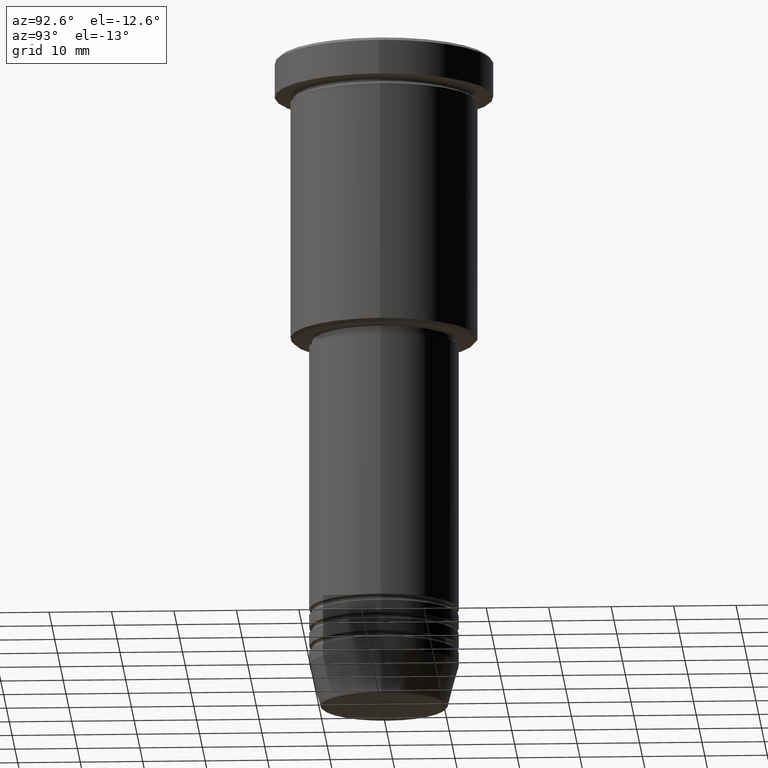
[diagram: clean part render]
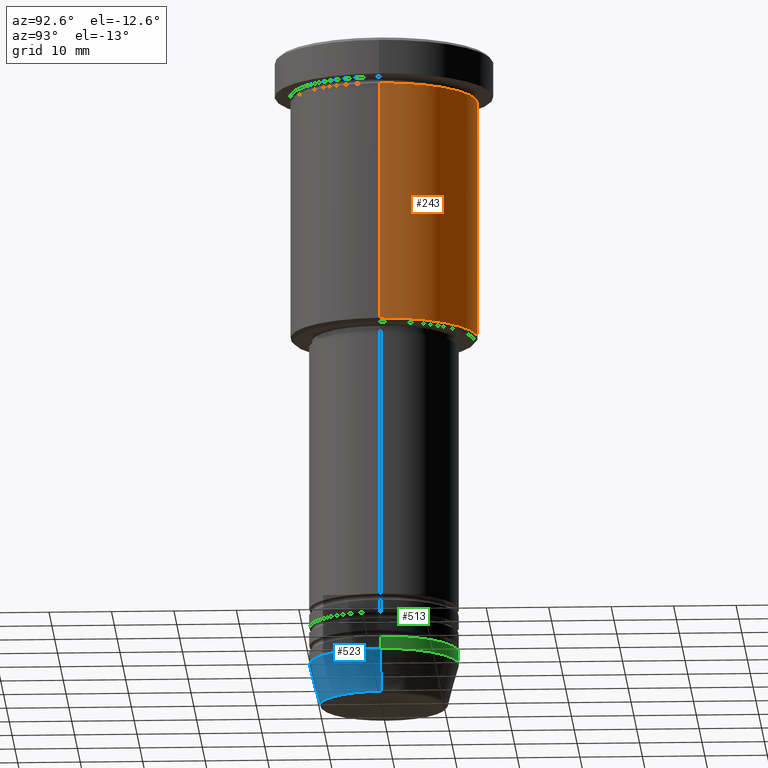
[diagram: same view with three faces highlighted in distinct colors, each labeled with its STEP entity id]
A machine part, auxiliary view with three faces highlighted in distinct colors.
Their STEP definitions:

[orange] entity #243 — the highlighted cylindrical surface (partial cylindrical patch) has radius 15 mm, axis along (-0, -0, 1).
#10 = CARTESIAN_POINT ( 'NONE',  ( 0.000000000000000000, 0.000000000000000000, -45.49999999999998579 ) ) ;
#18 = VERTEX_POINT ( 'NONE', #159 ) ;
#21 = VERTEX_POINT ( 'NONE', #241 ) ;
#55 = DIRECTION ( 'NONE',  ( -0.000000000000000000, -0.000000000000000000, 1.000000000000000000 ) ) ;
#136 = DIRECTION ( 'NONE',  ( -0.000000000000000000, -0.000000000000000000, 1.000000000000000000 ) ) ;
#138 = DIRECTION ( 'NONE',  ( -0.000000000000000000, -0.000000000000000000, 1.000000000000000000 ) ) ;
#148 = ORIENTED_EDGE ( 'NONE', *, *, #1132, .F. ) ;
#159 = CARTESIAN_POINT ( 'NONE',  ( 15.00000000000000000, 0.000000000000000000, -6.999999999999995559 ) ) ;
#170 = ORIENTED_EDGE ( 'NONE', *, *, #185, .T. ) ;
#185 = EDGE_CURVE ( 'NONE', #1053, #958, #361, .T. ) ;
#189 = VECTOR ( 'NONE', #136, 1000.000000000000000 ) ;
#205 = CARTESIAN_POINT ( 'NONE',  ( 0.000000000000000000, 0.000000000000000000, 0.000000000000000000 ) ) ;
#235 = AXIS2_PLACEMENT_3D ( 'NONE', #205, #759, #1122 ) ;
#241 = CARTESIAN_POINT ( 'NONE',  ( -15.00000000000000000, 1.836970198721029589E-15, -6.999999999999995559 ) ) ;
#243 = ADVANCED_FACE ( 'NONE', ( #667 ), #1023, .T. ) ;
#310 = ORIENTED_EDGE ( 'NONE', *, *, #486, .T. ) ;
#361 = CIRCLE ( 'NONE', #1037, 15.00000000000000000 ) ;
#367 = DIRECTION ( 'NONE',  ( -0.000000000000000000, -0.000000000000000000, 1.000000000000000000 ) ) ;
#391 = CARTESIAN_POINT ( 'NONE',  ( -15.00000000000000000, 1.836970198721029589E-15, -45.49999999999998579 ) ) ;
#406 = LINE ( 'NONE', #419, #1103 ) ;
#419 = CARTESIAN_POINT ( 'NONE',  ( 15.00000000000000000, 0.000000000000000000, 0.000000000000000000 ) ) ;
#486 = EDGE_CURVE ( 'NONE', #958, #21, #581, .T. ) ;
#559 = DIRECTION ( 'NONE',  ( -1.000000000000000000, 0.000000000000000000, 0.000000000000000000 ) ) ;
#581 = LINE ( 'NONE', #857, #189 ) ;
#588 = AXIS2_PLACEMENT_3D ( 'NONE', #1082, #55, #1157 ) ;
#667 = FACE_OUTER_BOUND ( 'NONE', #1027, .T. ) ;
#682 = CARTESIAN_POINT ( 'NONE',  ( 15.00000000000000000, 0.000000000000000000, -45.49999999999998579 ) ) ;
#759 = DIRECTION ( 'NONE',  ( -0.000000000000000000, -0.000000000000000000, 1.000000000000000000 ) ) ;
#857 = CARTESIAN_POINT ( 'NONE',  ( -15.00000000000000000, 1.836970198721029589E-15, 0.000000000000000000 ) ) ;
#958 = VERTEX_POINT ( 'NONE', #391 ) ;
#986 = ORIENTED_EDGE ( 'NONE', *, *, #1120, .F. ) ;
#1023 = CYLINDRICAL_SURFACE ( 'NONE', #235, 15.00000000000000000 ) ;
#1027 = EDGE_LOOP ( 'NONE', ( #170, #310, #986, #148 ) ) ;
#1037 = AXIS2_PLACEMENT_3D ( 'NONE', #10, #367, #559 ) ;
#1053 = VERTEX_POINT ( 'NONE', #682 ) ;
#1082 = CARTESIAN_POINT ( 'NONE',  ( 0.000000000000000000, 0.000000000000000000, -6.999999999999995559 ) ) ;
#1103 = VECTOR ( 'NONE', #138, 1000.000000000000000 ) ;
#1120 = EDGE_CURVE ( 'NONE', #18, #21, #1183, .T. ) ;
#1122 = DIRECTION ( 'NONE',  ( 1.000000000000000000, 0.000000000000000000, 0.000000000000000000 ) ) ;
#1132 = EDGE_CURVE ( 'NONE', #1053, #18, #406, .T. ) ;
#1157 = DIRECTION ( 'NONE',  ( 1.000000000000000000, 0.000000000000000000, 0.000000000000000000 ) ) ;
#1183 = CIRCLE ( 'NONE', #588, 15.00000000000000000 ) ;

[blue] entity #523 — the highlighted conical surface has half-angle 15 deg.
#26 = VERTEX_POINT ( 'NONE', #352 ) ;
#39 = DIRECTION ( 'NONE',  ( 1.000000000000000000, 0.000000000000000000, 0.000000000000000000 ) ) ;
#51 = ORIENTED_EDGE ( 'NONE', *, *, #220, .T. ) ;
#89 = AXIS2_PLACEMENT_3D ( 'NONE', #1049, #117, #39 ) ;
#117 = DIRECTION ( 'NONE',  ( -0.000000000000000000, -0.000000000000000000, 1.000000000000000000 ) ) ;
#211 = VERTEX_POINT ( 'NONE', #1095 ) ;
#220 = EDGE_CURVE ( 'NONE', #26, #293, #370, .T. ) ;
#236 = AXIS2_PLACEMENT_3D ( 'NONE', #321, #1070, #727 ) ;
#286 = CONICAL_SURFACE ( 'NONE', #236, 12.00000000000000000, 0.2617993877991500740 ) ;
#293 = VERTEX_POINT ( 'NONE', #948 ) ;
#296 = CARTESIAN_POINT ( 'NONE',  ( 0.000000000000000000, 0.000000000000000000, -105.6294095225512564 ) ) ;
#321 = CARTESIAN_POINT ( 'NONE',  ( 0.000000000000000000, 0.000000000000000000, -99.00000000000000000 ) ) ;
#352 = CARTESIAN_POINT ( 'NONE',  ( 10.22365507213719305, 0.000000000000000000, -105.6294095225512564 ) ) ;
#370 = LINE ( 'NONE', #657, #795 ) ;
#405 = EDGE_CURVE ( 'NONE', #211, #420, #409, .T. ) ;
#409 = LINE ( 'NONE', #784, #507 ) ;
#420 = VERTEX_POINT ( 'NONE', #533 ) ;
#479 = DIRECTION ( 'NONE',  ( -0.000000000000000000, -0.000000000000000000, 1.000000000000000000 ) ) ;
#507 = VECTOR ( 'NONE', #1144, 1000.000000000000000 ) ;
#523 = ADVANCED_FACE ( 'NONE', ( #661 ), #286, .T. ) ;
#533 = CARTESIAN_POINT ( 'NONE',  ( -12.00000000000000000, 1.469576158976823947E-15, -99.00000000000000000 ) ) ;
#605 = CIRCLE ( 'NONE', #89, 12.00000000000000000 ) ;
#657 = CARTESIAN_POINT ( 'NONE',  ( 12.00000000000000000, 0.000000000000000000, -99.00000000000000000 ) ) ;
#661 = FACE_OUTER_BOUND ( 'NONE', #955, .T. ) ;
#727 = DIRECTION ( 'NONE',  ( 1.000000000000000000, 0.000000000000000000, 0.000000000000000000 ) ) ;
#747 = DIRECTION ( 'NONE',  ( 1.000000000000000000, 0.000000000000000000, 0.000000000000000000 ) ) ;
#776 = AXIS2_PLACEMENT_3D ( 'NONE', #296, #479, #747 ) ;
#780 = ORIENTED_EDGE ( 'NONE', *, *, #405, .F. ) ;
#784 = CARTESIAN_POINT ( 'NONE',  ( -12.00000000000000000, 1.469576158976823947E-15, -99.00000000000000000 ) ) ;
#795 = VECTOR ( 'NONE', #1180, 1000.000000000000000 ) ;
#803 = ORIENTED_EDGE ( 'NONE', *, *, #956, .F. ) ;
#948 = CARTESIAN_POINT ( 'NONE',  ( 12.00000000000000000, 0.000000000000000000, -99.00000000000000000 ) ) ;
#955 = EDGE_LOOP ( 'NONE', ( #780, #1129, #51, #803 ) ) ;
#956 = EDGE_CURVE ( 'NONE', #420, #293, #605, .T. ) ;
#1038 = EDGE_CURVE ( 'NONE', #211, #26, #1135, .T. ) ;
#1049 = CARTESIAN_POINT ( 'NONE',  ( 0.000000000000000000, 0.000000000000000000, -99.00000000000000000 ) ) ;
#1070 = DIRECTION ( 'NONE',  ( -0.000000000000000000, -0.000000000000000000, 1.000000000000000000 ) ) ;
#1095 = CARTESIAN_POINT ( 'NONE',  ( -10.22365507213719305, 1.360806402472382744E-15, -105.6294095225512564 ) ) ;
#1129 = ORIENTED_EDGE ( 'NONE', *, *, #1038, .T. ) ;
#1135 = CIRCLE ( 'NONE', #776, 10.22365507213719305 ) ;
#1144 = DIRECTION ( 'NONE',  ( -0.2588190451025213501, 3.169619151431772337E-17, 0.9659258262890680902 ) ) ;
#1180 = DIRECTION ( 'NONE',  ( 0.2588190451025213501, 0.000000000000000000, 0.9659258262890680902 ) ) ;

[green] entity #513 — the highlighted cylindrical surface (partial cylindrical patch) has radius 12 mm, axis along (-0, -0, 1).
#25 = CARTESIAN_POINT ( 'NONE',  ( 12.00000000000000000, 0.000000000000000000, 0.000000000000000000 ) ) ;
#61 = DIRECTION ( 'NONE',  ( -0.000000000000000000, -0.000000000000000000, 1.000000000000000000 ) ) ;
#69 = ORIENTED_EDGE ( 'NONE', *, *, #702, .T. ) ;
#116 = DIRECTION ( 'NONE',  ( -0.000000000000000000, -0.000000000000000000, 1.000000000000000000 ) ) ;
#121 = CIRCLE ( 'NONE', #218, 12.00000000000000000 ) ;
#123 = CIRCLE ( 'NONE', #916, 12.00000000000000000 ) ;
#128 = CARTESIAN_POINT ( 'NONE',  ( -12.00000000000000000, 1.469576158976823947E-15, 0.000000000000000000 ) ) ;
#140 = LINE ( 'NONE', #128, #930 ) ;
#152 = DIRECTION ( 'NONE',  ( 1.000000000000000000, 0.000000000000000000, 0.000000000000000000 ) ) ;
#175 = ORIENTED_EDGE ( 'NONE', *, *, #1126, .F. ) ;
#183 = DIRECTION ( 'NONE',  ( 1.000000000000000000, 0.000000000000000000, 0.000000000000000000 ) ) ;
#218 = AXIS2_PLACEMENT_3D ( 'NONE', #889, #61, #183 ) ;
#228 = EDGE_CURVE ( 'NONE', #293, #508, #635, .T. ) ;
#261 = CARTESIAN_POINT ( 'NONE',  ( 0.000000000000000000, 0.000000000000000000, -97.00000000000000000 ) ) ;
#293 = VERTEX_POINT ( 'NONE', #948 ) ;
#339 = CARTESIAN_POINT ( 'NONE',  ( 0.000000000000000000, 0.000000000000000000, 0.000000000000000000 ) ) ;
#346 = EDGE_LOOP ( 'NONE', ( #69, #489, #175, #499 ) ) ;
#368 = EDGE_CURVE ( 'NONE', #420, #975, #140, .T. ) ;
#420 = VERTEX_POINT ( 'NONE', #533 ) ;
#489 = ORIENTED_EDGE ( 'NONE', *, *, #368, .T. ) ;
#499 = ORIENTED_EDGE ( 'NONE', *, *, #228, .F. ) ;
#508 = VERTEX_POINT ( 'NONE', #592 ) ;
#513 = ADVANCED_FACE ( 'NONE', ( #1162 ), #722, .T. ) ;
#533 = CARTESIAN_POINT ( 'NONE',  ( -12.00000000000000000, 1.469576158976823947E-15, -99.00000000000000000 ) ) ;
#536 = AXIS2_PLACEMENT_3D ( 'NONE', #339, #974, #152 ) ;
#592 = CARTESIAN_POINT ( 'NONE',  ( 12.00000000000000000, 0.000000000000000000, -97.00000000000000000 ) ) ;
#630 = DIRECTION ( 'NONE',  ( 1.000000000000000000, 0.000000000000000000, 0.000000000000000000 ) ) ;
#635 = LINE ( 'NONE', #25, #1081 ) ;
#702 = EDGE_CURVE ( 'NONE', #293, #420, #121, .T. ) ;
#712 = DIRECTION ( 'NONE',  ( -0.000000000000000000, -0.000000000000000000, 1.000000000000000000 ) ) ;
#722 = CYLINDRICAL_SURFACE ( 'NONE', #536, 12.00000000000000000 ) ;
#889 = CARTESIAN_POINT ( 'NONE',  ( 0.000000000000000000, 0.000000000000000000, -99.00000000000000000 ) ) ;
#916 = AXIS2_PLACEMENT_3D ( 'NONE', #261, #712, #630 ) ;
#930 = VECTOR ( 'NONE', #959, 1000.000000000000000 ) ;
#948 = CARTESIAN_POINT ( 'NONE',  ( 12.00000000000000000, 0.000000000000000000, -99.00000000000000000 ) ) ;
#953 = CARTESIAN_POINT ( 'NONE',  ( -12.00000000000000000, 1.469576158976823947E-15, -97.00000000000000000 ) ) ;
#959 = DIRECTION ( 'NONE',  ( -0.000000000000000000, -0.000000000000000000, 1.000000000000000000 ) ) ;
#974 = DIRECTION ( 'NONE',  ( -0.000000000000000000, -0.000000000000000000, 1.000000000000000000 ) ) ;
#975 = VERTEX_POINT ( 'NONE', #953 ) ;
#1081 = VECTOR ( 'NONE', #116, 1000.000000000000000 ) ;
#1126 = EDGE_CURVE ( 'NONE', #508, #975, #123, .T. ) ;
#1162 = FACE_OUTER_BOUND ( 'NONE', #346, .T. ) ;